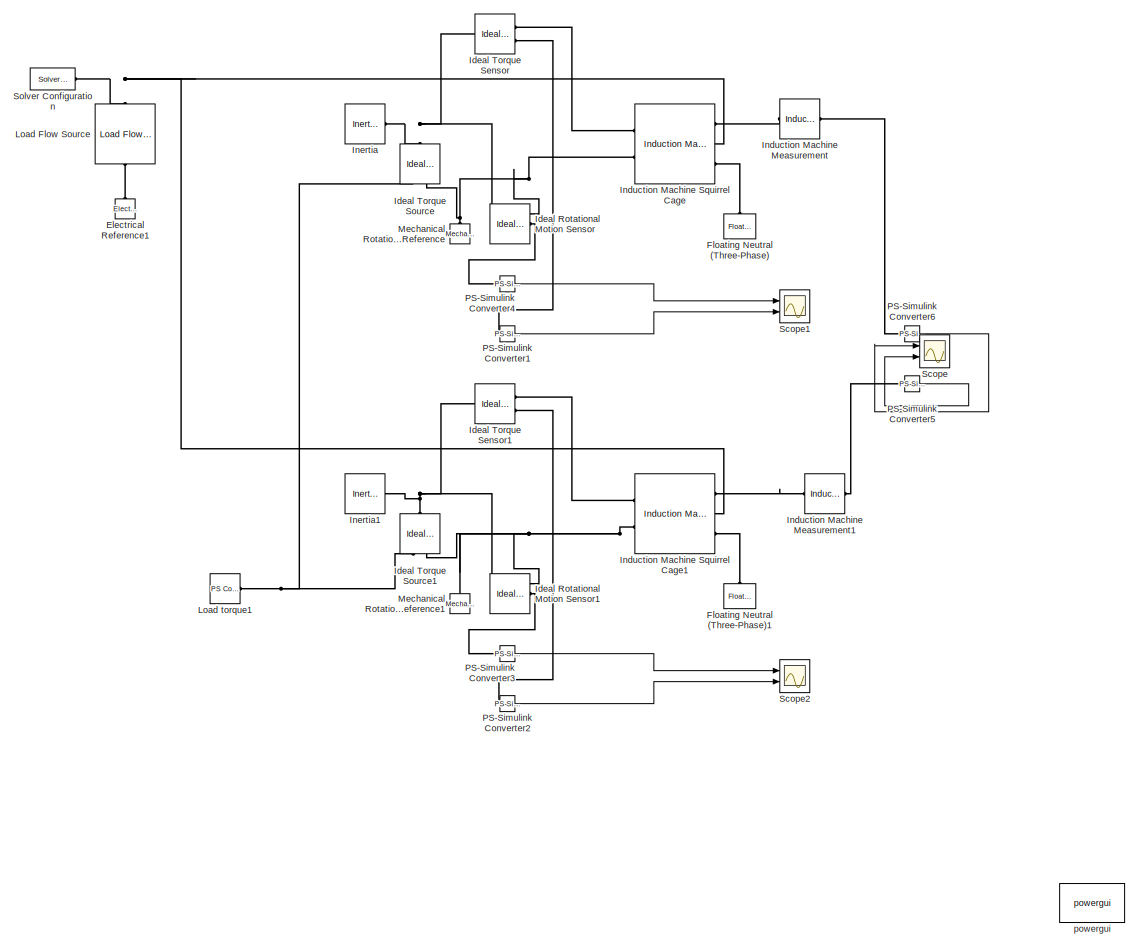
[diagram: root canvas - part 1/6, top left region]
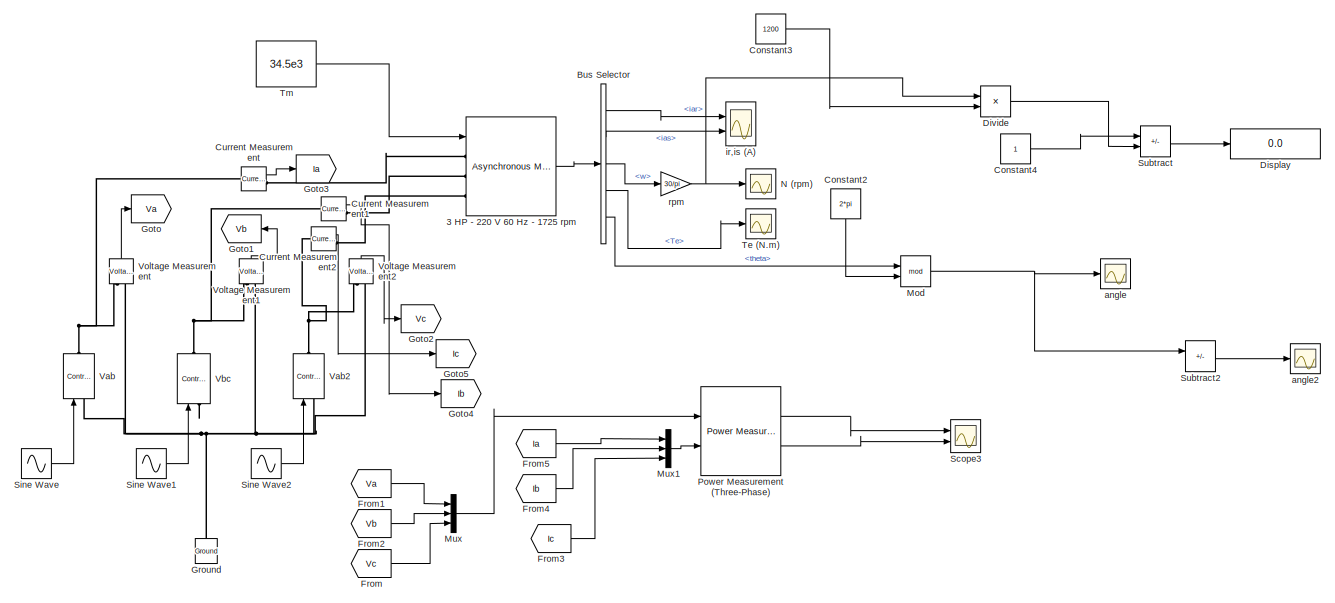
[diagram: root canvas - part 2/6, top center region]
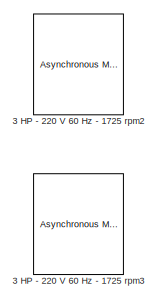
[diagram: root canvas - part 3/6, top right region]
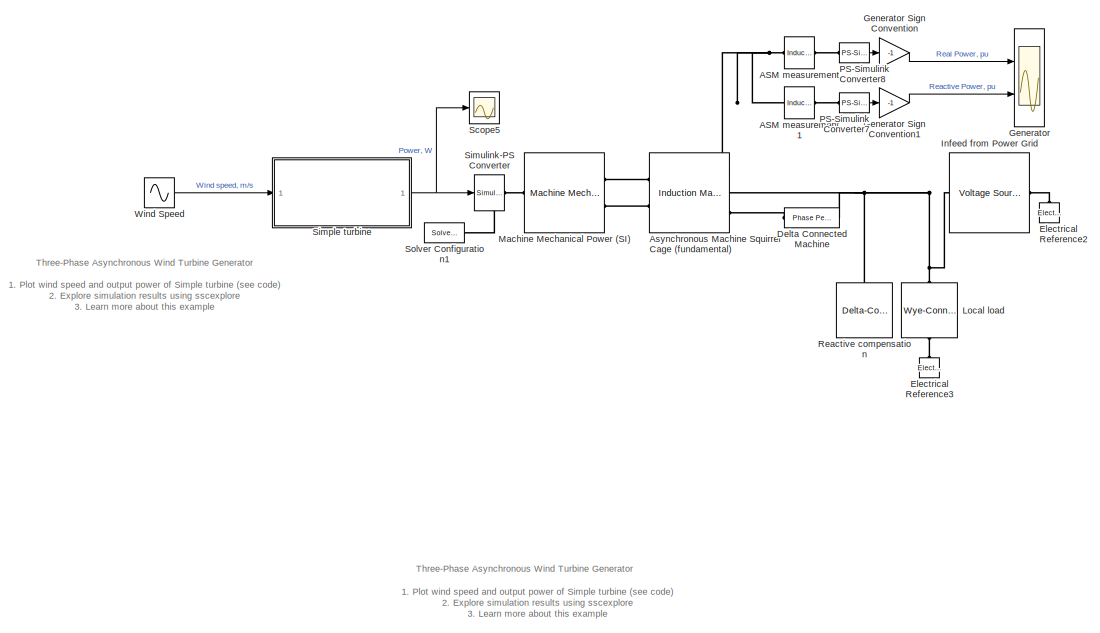
[diagram: root canvas - part 4/6, bottom right region]
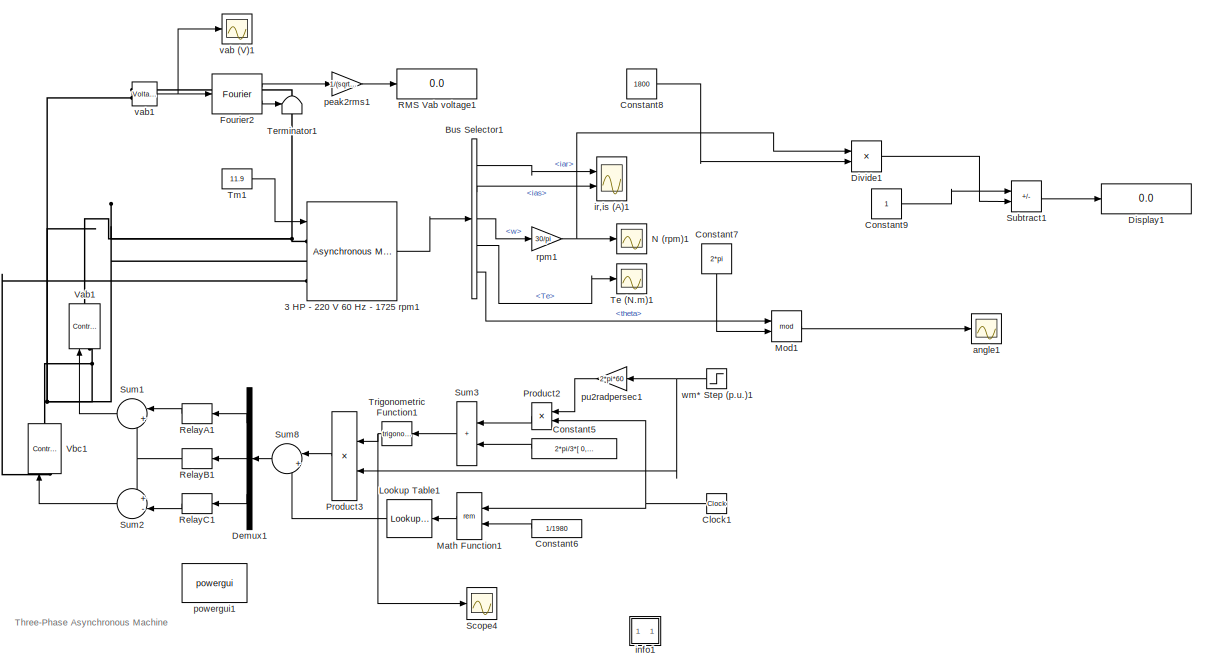
[diagram: root canvas - part 5/6, bottom left region]
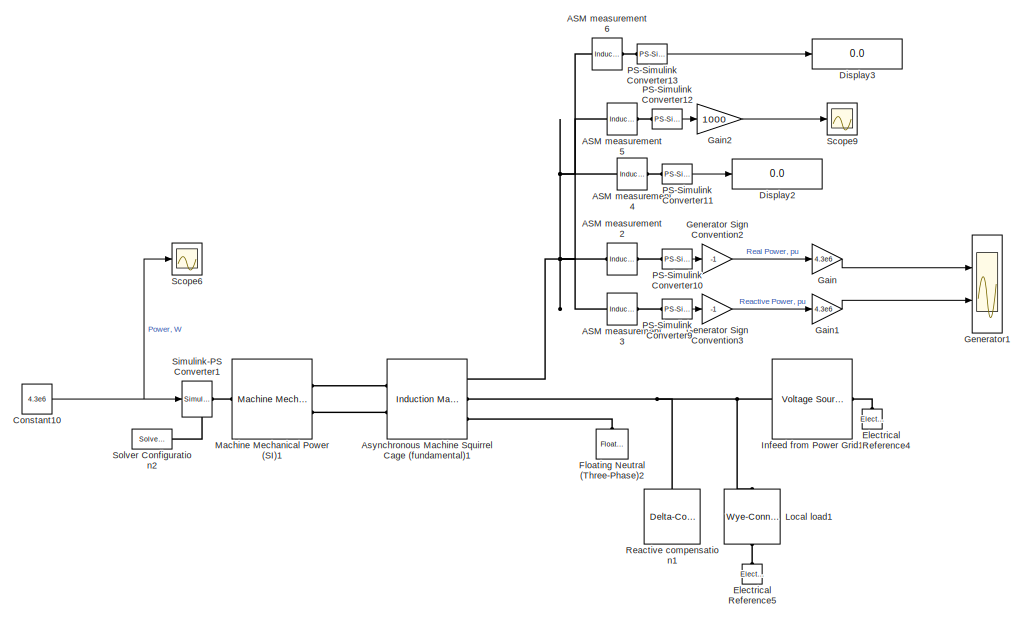
[diagram: root canvas - part 6/6, bottom center region]
MODEL slx_86ca08643fb0
KIND model
CONFIG AbsTol = auto
CONFIG EnableMultiTasking = off
CONFIG FixedStep = auto
CONFIG MaxStep = auto
CONFIG MinStep = auto
CONFIG RelTol = 1e-3
CONFIG SampleTimeConstraint = Unconstrained
CONFIG SolverName = VariableStepAuto
CONFIG StartTime = 0.0
CONFIG StopTime = 60
BLOCK [Reference] 3 HP - 220 V 60 Hz - 1725 rpm  REF=spsAsynchronousMachineSIUnitsLib/Asynchronous Machine
SI Units
  AttributesFormatString = \n
  Ports = [1, 1, 0, 0, 0, 3]
  SourceBlock = spsAsynchronousMachineSIUnitsLib/Asynchronous Machine\nSI Units
  SourceProductBaseCode = PS
  SourceType = Asynchronous Machine
BLOCK [Reference] 3 HP - 220 V 60 Hz - 1725 rpm1  REF=spsAsynchronousMachineSIUnitsLib/Asynchronous Machine
SI Units
  AttributesFormatString = \n
  Commented = on
  Ports = [1, 1, 0, 0, 0, 3]
  SourceBlock = spsAsynchronousMachineSIUnitsLib/Asynchronous Machine\nSI Units
  SourceProductBaseCode = PS
  SourceType = Asynchronous Machine
BLOCK [Reference] 3 HP - 220 V 60 Hz - 1725 rpm2  REF=spsAsynchronousMachineSIUnitsLib/Asynchronous Machine
SI Units
  AttributesFormatString = \n
  Commented = on
  Ports = [0, 1, 0, 0, 0, 4]
  SourceBlock = spsAsynchronousMachineSIUnitsLib/Asynchronous Machine\nSI Units
  SourceProductBaseCode = PS
  SourceType = Asynchronous Machine
BLOCK [Reference] 3 HP - 220 V 60 Hz - 1725 rpm3  REF=spsAsynchronousMachineSIUnitsLib/Asynchronous Machine
SI Units
  AttributesFormatString = \n
  Commented = on
  Ports = [0, 1, 0, 0, 0, 4]
  SourceBlock = spsAsynchronousMachineSIUnitsLib/Asynchronous Machine\nSI Units
  SourceProductBaseCode = PS
  SourceType = Asynchronous Machine
BLOCK [Reference] ASM measurement  REF=ee_lib/Electromechanical/Asynchronous/Induction Machine
Measurement
  Commented = on
  Ports = [0, 0, 0, 0, 0, 1, 1]
  SourceBlock = ee_lib/Electromechanical/Asynchronous/Induction Machine\nMeasurement
  SourceProductBaseCode = PS
  SourceType = Induction Machine\nMeasurement
BLOCK [Reference] ASM measurement1  REF=ee_lib/Electromechanical/Asynchronous/Induction Machine
Measurement
  Commented = on
  Ports = [0, 0, 0, 0, 0, 1, 1]
  SourceBlock = ee_lib/Electromechanical/Asynchronous/Induction Machine\nMeasurement
  SourceProductBaseCode = PS
  SourceType = Induction Machine\nMeasurement
BLOCK [Reference] ASM measurement2  REF=ee_lib/Electromechanical/Asynchronous/Induction Machine
Measurement
  Ports = [0, 0, 0, 0, 0, 1, 1]
  SourceBlock = ee_lib/Electromechanical/Asynchronous/Induction Machine\nMeasurement
  SourceProductBaseCode = PS
  SourceType = Induction Machine\nMeasurement
BLOCK [Reference] ASM measurement3  REF=ee_lib/Electromechanical/Asynchronous/Induction Machine
Measurement
  Ports = [0, 0, 0, 0, 0, 1, 1]
  SourceBlock = ee_lib/Electromechanical/Asynchronous/Induction Machine\nMeasurement
  SourceProductBaseCode = PS
  SourceType = Induction Machine\nMeasurement
BLOCK [Reference] ASM measurement4  REF=ee_lib/Electromechanical/Asynchronous/Induction Machine
Measurement
  Ports = [0, 0, 0, 0, 0, 1, 1]
  SourceBlock = ee_lib/Electromechanical/Asynchronous/Induction Machine\nMeasurement
  SourceProductBaseCode = PS
  SourceType = Induction Machine\nMeasurement
BLOCK [Reference] ASM measurement5  REF=ee_lib/Electromechanical/Asynchronous/Induction Machine
Measurement
  Ports = [0, 0, 0, 0, 0, 1, 1]
  SourceBlock = ee_lib/Electromechanical/Asynchronous/Induction Machine\nMeasurement
  SourceProductBaseCode = PS
  SourceType = Induction Machine\nMeasurement
BLOCK [Reference] ASM measurement6  REF=ee_lib/Electromechanical/Asynchronous/Induction Machine
Measurement
  Ports = [0, 0, 0, 0, 0, 1, 1]
  SourceBlock = ee_lib/Electromechanical/Asynchronous/Induction Machine\nMeasurement
  SourceProductBaseCode = PS
  SourceType = Induction Machine\nMeasurement
BLOCK [Reference] Asynchronous Machine Squirrel Cage (fundamental)  REF=ee_lib/Electromechanical/Asynchronous/Induction Machine
Squirrel Cage
  Commented = on
  Ports = [0, 0, 0, 0, 0, 2, 3]
  SourceBlock = ee_lib/Electromechanical/Asynchronous/Induction Machine\nSquirrel Cage
  SourceProductBaseCode = PS
  SourceType = Induction Machine\nSquirrel Cage
BLOCK [Reference] Asynchronous Machine Squirrel Cage (fundamental)1  REF=ee_lib/Electromechanical/Asynchronous/Induction Machine
Squirrel Cage
  Ports = [0, 0, 0, 0, 0, 2, 3]
  SourceBlock = ee_lib/Electromechanical/Asynchronous/Induction Machine\nSquirrel Cage
  SourceProductBaseCode = PS
  SourceType = Induction Machine\nSquirrel Cage
BLOCK [BusSelector] Bus Selector
  OutputSignals = iar,ias,w,Te,theta
  Ports = [1, 5]
BLOCK [BusSelector] Bus Selector1
  Commented = on
  OutputSignals = iar,ias,w,Te,theta
  Ports = [1, 5]
BLOCK [Clock] Clock1
  Commented = on
BLOCK [Constant] Constant10
  Value = 4.3e6
BLOCK [Constant] Constant2
  NameLocation = left
  Value = 2*pi
BLOCK [Constant] Constant3
  Value = 1200
BLOCK [Constant] Constant4
BLOCK [Constant] Constant5
  Commented = on
  Value = 2*pi/3*[ 0,-1,1 ]
BLOCK [Constant] Constant6
  Commented = on
  Value = 1/1980
BLOCK [Constant] Constant7
  Commented = on
  NameLocation = left
  Value = 2*pi
BLOCK [Constant] Constant8
  Commented = on
  Value = 1800
BLOCK [Constant] Constant9
  Commented = on
BLOCK [Reference] Current Measurement  REF=spsCurrentMeasurementLib/Current Measurement
  Ports = [0, 1, 0, 0, 0, 1, 1]
  SourceBlock = spsCurrentMeasurementLib/Current Measurement
  SourceProductBaseCode = PS
  SourceType = Current Measurement
  UserDataPersistent = on
BLOCK [Reference] Current Measurement1  REF=spsCurrentMeasurementLib/Current Measurement
  Ports = [0, 1, 0, 0, 0, 1, 1]
  SourceBlock = spsCurrentMeasurementLib/Current Measurement
  SourceProductBaseCode = PS
  SourceType = Current Measurement
  UserDataPersistent = on
BLOCK [Reference] Current Measurement2  REF=spsCurrentMeasurementLib/Current Measurement
  Ports = [0, 1, 0, 0, 0, 1, 1]
  SourceBlock = spsCurrentMeasurementLib/Current Measurement
  SourceProductBaseCode = PS
  SourceType = Current Measurement
  UserDataPersistent = on
BLOCK [Reference] Delta Connected Machine  REF=ee_lib/Connectors &
References/Phase Permute
  Commented = on
  Ports = [0, 0, 0, 0, 0, 1, 1]
  SourceBlock = ee_lib/Connectors &\nReferences/Phase Permute
  SourceProductBaseCode = PS
  SourceType = Phase Permute
BLOCK [Demux] Demux1
  Commented = on
  DisplayOption = none
  Outputs = 3
  Ports = [1, 3]
BLOCK [Display] Display
  Decimation = 1
  Ports = [1]
BLOCK [Display] Display1
  Commented = on
  Decimation = 1
  Ports = [1]
BLOCK [Display] Display2
  Decimation = 1
  Ports = [1]
BLOCK [Display] Display3
  Decimation = 1
  Ports = [1]
BLOCK [Product] Divide
  Inputs = */
  Ports = [2, 1]
BLOCK [Product] Divide1
  Commented = on
  Inputs = */
  Ports = [2, 1]
BLOCK [Reference] Electrical Reference1  REF=fl_lib/Electrical/Electrical Elements/Electrical Reference
  Commented = on
  NameLocation = right
  Ports = [0, 0, 0, 0, 0, 1]
  SourceBlock = fl_lib/Electrical/Electrical Elements/Electrical Reference
  SourceProductBaseCode = SS
  SourceType = Electrical Reference
BLOCK [Reference] Electrical Reference2  REF=fl_lib/Electrical/Electrical Elements/Electrical Reference
  Commented = on
  NameLocation = right
  Ports = [0, 0, 0, 0, 0, 1]
  SourceBlock = fl_lib/Electrical/Electrical Elements/Electrical Reference
  SourceProductBaseCode = SS
  SourceType = Electrical Reference
BLOCK [Reference] Electrical Reference3  REF=fl_lib/Electrical/Electrical Elements/Electrical Reference
  Commented = on
  NameLocation = right
  Ports = [0, 0, 0, 0, 0, 1]
  SourceBlock = fl_lib/Electrical/Electrical Elements/Electrical Reference
  SourceProductBaseCode = SS
  SourceType = Electrical Reference
BLOCK [Reference] Electrical Reference4  REF=fl_lib/Electrical/Electrical Elements/Electrical Reference
  NameLocation = right
  Ports = [0, 0, 0, 0, 0, 1]
  SourceBlock = fl_lib/Electrical/Electrical Elements/Electrical Reference
  SourceProductBaseCode = SS
  SourceType = Electrical Reference
BLOCK [Reference] Electrical Reference5  REF=fl_lib/Electrical/Electrical Elements/Electrical Reference
  Commented = on
  NameLocation = right
  Ports = [0, 0, 0, 0, 0, 1]
  SourceBlock = fl_lib/Electrical/Electrical Elements/Electrical Reference
  SourceProductBaseCode = SS
  SourceType = Electrical Reference
BLOCK [Reference] Floating Neutral (Three-Phase)  REF=ee_lib/Connectors &
References/Floating Neutral
(Three-Phase)
  Commented = on
  NameLocation = right
  Ports = [0, 0, 0, 0, 0, 1]
  SourceBlock = ee_lib/Connectors &\nReferences/Floating Neutral\n(Three-Phase)
  SourceProductBaseCode = PS
  SourceType = Floating Neutral\n(Three-Phase)
BLOCK [Reference] Floating Neutral (Three-Phase)1  REF=ee_lib/Connectors &
References/Floating Neutral
(Three-Phase)
  Commented = on
  NameLocation = right
  Ports = [0, 0, 0, 0, 0, 1]
  SourceBlock = ee_lib/Connectors &\nReferences/Floating Neutral\n(Three-Phase)
  SourceProductBaseCode = PS
  SourceType = Floating Neutral\n(Three-Phase)
BLOCK [Reference] Floating Neutral (Three-Phase)2  REF=ee_lib/Connectors &
References/Floating Neutral
(Three-Phase)
  NameLocation = right
  Ports = [0, 0, 0, 0, 0, 1]
  SourceBlock = ee_lib/Connectors &\nReferences/Floating Neutral\n(Three-Phase)
  SourceProductBaseCode = PS
  SourceType = Floating Neutral\n(Three-Phase)
BLOCK [Reference] Fourier2  REF=spsFourierLib/Fourier
  Commented = on
  Ports = [1, 2]
  SourceBlock = spsFourierLib/Fourier
  SourceProductBaseCode = PS
  SourceType = Fourier
BLOCK [From] From
  GotoTag = Vc
BLOCK [From] From1
  GotoTag = Va
BLOCK [From] From2
  GotoTag = Vb
BLOCK [From] From3
  GotoTag = Ic
BLOCK [From] From4
  GotoTag = Ib
BLOCK [From] From5
  GotoTag = Ia
BLOCK [Gain] Gain
  Gain = 4.3e6
BLOCK [Gain] Gain1
  Gain = 4.3e6
BLOCK [Gain] Gain2
  Gain = 1000
BLOCK [Scope] Generator
  Commented = on
  Floating = off
  NumInputPorts = 2
  Ports = [2]
  ScopeSpecificationString = Simulink.scopes.TimeScopeBlockCfg('CurrentConfiguration', extmgr.ConfigurationSet(extmgr.Configuration('Core','General UI',true),extmgr.Configuration('Core','Source UI',true),extmgr.Configuration('Sources','WiredSimulink',true,'DataLoggingVariableName','ScopeData16','DataLoggingSaveFormat','Array','DataLoggingDecimation','1','DataLoggingDecimateData',true),extmgr.Configuration('Visuals','Time Doma...<+2374ch>
BLOCK [Gain] Generator Sign Convention
  Commented = on
  Gain = -1
BLOCK [Gain] Generator Sign Convention1
  Commented = on
  Gain = -1
BLOCK [Gain] Generator Sign Convention2
  Gain = -1
BLOCK [Gain] Generator Sign Convention3
  Gain = -1
BLOCK [Scope] Generator1
  Floating = off
  NumInputPorts = 2
  Ports = [2]
  ScopeSpecificationString = Simulink.scopes.TimeScopeBlockCfg('CurrentConfiguration', extmgr.ConfigurationSet(extmgr.Configuration('Core','General UI',true),extmgr.Configuration('Core','Source UI',true),extmgr.Configuration('Sources','WiredSimulink',true,'DataLoggingVariableName','ScopeData18','DataLoggingSaveFormat','Array','DataLoggingDecimation','1','DataLoggingDecimateData',true),extmgr.Configuration('Visuals','Time Doma...<+2390ch>
BLOCK [Goto] Goto
  GotoTag = Va
BLOCK [Goto] Goto1
  GotoTag = Vb
  NameLocation = top
BLOCK [Goto] Goto2
  GotoTag = Vc
BLOCK [Goto] Goto3
  GotoTag = Ia
BLOCK [Goto] Goto4
  GotoTag = Ib
BLOCK [Goto] Goto5
  GotoTag = Ic
BLOCK [Reference] Ground  REF=spsGroundLib/Ground
  NameLocation = right
  Ports = [0, 0, 0, 0, 0, 1]
  SourceBlock = spsGroundLib/Ground
  SourceProductBaseCode = PS
  SourceType = Ground
BLOCK [Reference] Ideal Rotational Motion Sensor  REF=fl_lib/Mechanical/Mechanical Sensors/Ideal Rotational
Motion Sensor
  Commented = on
  Ports = [0, 0, 0, 0, 0, 1, 3]
  SourceBlock = fl_lib/Mechanical/Mechanical Sensors/Ideal Rotational\nMotion Sensor
  SourceProductBaseCode = SS
  SourceType = Ideal Rotational\nMotion Sensor
BLOCK [Reference] Ideal Rotational Motion Sensor1  REF=fl_lib/Mechanical/Mechanical Sensors/Ideal Rotational
Motion Sensor
  Commented = on
  Ports = [0, 0, 0, 0, 0, 1, 3]
  SourceBlock = fl_lib/Mechanical/Mechanical Sensors/Ideal Rotational\nMotion Sensor
  SourceProductBaseCode = SS
  SourceType = Ideal Rotational\nMotion Sensor
BLOCK [Reference] Ideal Torque Sensor  REF=fl_lib/Mechanical/Mechanical Sensors/Ideal Torque Sensor
  Commented = on
  Ports = [0, 0, 0, 0, 0, 1, 2]
  SourceBlock = fl_lib/Mechanical/Mechanical Sensors/Ideal Torque Sensor
  SourceProductBaseCode = SS
  SourceType = Ideal Torque Sensor
BLOCK [Reference] Ideal Torque Sensor1  REF=fl_lib/Mechanical/Mechanical Sensors/Ideal Torque Sensor
  Commented = on
  Ports = [0, 0, 0, 0, 0, 1, 2]
  SourceBlock = fl_lib/Mechanical/Mechanical Sensors/Ideal Torque Sensor
  SourceProductBaseCode = SS
  SourceType = Ideal Torque Sensor
BLOCK [Reference] Ideal Torque Source  REF=fl_lib/Mechanical/Mechanical Sources/Ideal Torque Source
  Commented = on
  NameLocation = right
  Ports = [0, 0, 0, 0, 0, 1, 2]
  SourceBlock = fl_lib/Mechanical/Mechanical Sources/Ideal Torque Source
  SourceProductBaseCode = SS
  SourceType = Ideal Torque Source
BLOCK [Reference] Ideal Torque Source1  REF=fl_lib/Mechanical/Mechanical Sources/Ideal Torque Source
  Commented = on
  NameLocation = right
  Ports = [0, 0, 0, 0, 0, 1, 2]
  SourceBlock = fl_lib/Mechanical/Mechanical Sources/Ideal Torque Source
  SourceProductBaseCode = SS
  SourceType = Ideal Torque Source
BLOCK [Reference] Induction Machine Measurement  REF=ee_lib/Electromechanical/Asynchronous/Induction Machine
Measurement
  Commented = on
  Ports = [0, 0, 0, 0, 0, 1, 1]
  SourceBlock = ee_lib/Electromechanical/Asynchronous/Induction Machine\nMeasurement
  SourceProductBaseCode = PS
  SourceType = Induction Machine\nMeasurement
BLOCK [Reference] Induction Machine Measurement1  REF=ee_lib/Electromechanical/Asynchronous/Induction Machine
Measurement
  Commented = on
  Ports = [0, 0, 0, 0, 0, 1, 1]
  SourceBlock = ee_lib/Electromechanical/Asynchronous/Induction Machine\nMeasurement
  SourceProductBaseCode = PS
  SourceType = Induction Machine\nMeasurement
BLOCK [Reference] Induction Machine Squirrel Cage  REF=ee_lib/Electromechanical/Asynchronous/Induction Machine
Squirrel Cage
  Commented = on
  Ports = [0, 0, 0, 0, 0, 2, 3]
  SourceBlock = ee_lib/Electromechanical/Asynchronous/Induction Machine\nSquirrel Cage
  SourceProductBaseCode = PS
  SourceType = Induction Machine\nSquirrel Cage
BLOCK [Reference] Induction Machine Squirrel Cage1  REF=ee_lib/Electromechanical/Asynchronous/Induction Machine
Squirrel Cage
  Commented = on
  Ports = [0, 0, 0, 0, 0, 2, 3]
  SourceBlock = ee_lib/Electromechanical/Asynchronous/Induction Machine\nSquirrel Cage
  SourceProductBaseCode = PS
  SourceType = Induction Machine\nSquirrel Cage
BLOCK [Reference] Inertia  REF=fl_lib/Mechanical/Rotational Elements/Inertia
  Commented = on
  Ports = [0, 0, 0, 0, 0, 1]
  SourceBlock = fl_lib/Mechanical/Rotational Elements/Inertia
  SourceProductBaseCode = SS
  SourceType = Inertia
BLOCK [Reference] Inertia1  REF=fl_lib/Mechanical/Rotational Elements/Inertia
  Commented = on
  Ports = [0, 0, 0, 0, 0, 1]
  SourceBlock = fl_lib/Mechanical/Rotational Elements/Inertia
  SourceProductBaseCode = SS
  SourceType = Inertia
BLOCK [Reference] Infeed from Power Grid  REF=ee_lib/Sources/Voltage
Source
(Three-Phase)
  Commented = on
  Ports = [0, 0, 0, 0, 0, 1, 1]
  SourceBlock = ee_lib/Sources/Voltage\nSource\n(Three-Phase)
  SourceProductBaseCode = PS
  SourceType = Voltage\nSource\n(Three-Phase)
BLOCK [Reference] Infeed from Power Grid1  REF=ee_lib/Sources/Voltage
Source
(Three-Phase)
  Ports = [0, 0, 0, 0, 0, 1, 1]
  SourceBlock = ee_lib/Sources/Voltage\nSource\n(Three-Phase)
  SourceProductBaseCode = PS
  SourceType = Voltage\nSource\n(Three-Phase)
BLOCK [Reference] Load Flow Source  REF=ee_lib/Sources/Load Flow Source
  Commented = on
  NameLocation = left
  Ports = [0, 0, 0, 0, 0, 1, 1]
  SourceBlock = ee_lib/Sources/Load Flow Source
  SourceProductBaseCode = PS
  SourceType = Load Flow Source
BLOCK [Reference] Load torque1  REF=fl_lib/Physical Signals/Sources/PS Constant
  Commented = on
  Ports = [0, 0, 0, 0, 0, 0, 1]
  SourceBlock = fl_lib/Physical Signals/Sources/PS Constant
  SourceProductBaseCode = SS
  SourceType = PS Constant
BLOCK [Reference] Local load  REF=ee_lib/Passive/RLC Assemblies/Wye-Connected Load
  Commented = on
  NameLocation = right
  Ports = [0, 0, 0, 0, 0, 1, 1]
  SourceBlock = ee_lib/Passive/RLC Assemblies/Wye-Connected Load
  SourceProductBaseCode = PS
  SourceType = Wye-Connected Load
BLOCK [Reference] Local load1  REF=ee_lib/Passive/RLC Assemblies/Wye-Connected Load
  Commented = on
  NameLocation = right
  Ports = [0, 0, 0, 0, 0, 1, 1]
  SourceBlock = ee_lib/Passive/RLC Assemblies/Wye-Connected Load
  SourceProductBaseCode = PS
  SourceType = Wye-Connected Load
BLOCK [Lookup_n-D] Lookup Table1
  BreakpointsForDimension1 = [0 0.25  0.75  1] / 1980
  BreakpointsForDimension2 = [0 571.55 685.8 800.15 914.4 1028.8 1143.1 1257.4 1371.7 1486 1600.3 1714.6 1828.9 1943.2 2057.5 2171.8 2286.1 2400.5 2514.7 2629.1 2743.3 2857.7 2971.9 3086.3 3200.5 3314.9 3429.2]
  Commented = on
  InputPortMap = u0
  InternalRulePriority = Speed
  NumberOfTableDimensions = 1
  Ports = [1, 1]
  RndMeth = Simplest
  Table = [0  1  -1  0]
BLOCK [Reference] Machine Mechanical Power (SI)  REF=ee_lib/Electromechanical/Mechanical/Machine Mechanical
Power
  Commented = on
  Ports = [0, 0, 0, 0, 0, 1, 2]
  SourceBlock = ee_lib/Electromechanical/Mechanical/Machine Mechanical\nPower
  SourceProductBaseCode = PS
  SourceType = Machine Mechanical\nPower
BLOCK [Reference] Machine Mechanical Power (SI)1  REF=ee_lib/Electromechanical/Mechanical/Machine Mechanical
Power
  Ports = [0, 0, 0, 0, 0, 1, 2]
  SourceBlock = ee_lib/Electromechanical/Mechanical/Machine Mechanical\nPower
  SourceProductBaseCode = PS
  SourceType = Machine Mechanical\nPower
BLOCK [Math] Math Function1
  Commented = on
  Operator = rem
  Ports = [2, 1]
  SignedPower = on
BLOCK [Reference] Mechanical Rotational Reference  REF=fl_lib/Mechanical/Rotational Elements/Mechanical
Rotational Reference
  Commented = on
  NameLocation = right
  Ports = [0, 0, 0, 0, 0, 1]
  SourceBlock = fl_lib/Mechanical/Rotational Elements/Mechanical\nRotational Reference
  SourceProductBaseCode = SS
  SourceType = Mechanical\nRotational Reference
BLOCK [Reference] Mechanical Rotational Reference1  REF=fl_lib/Mechanical/Rotational Elements/Mechanical
Rotational Reference
  Commented = on
  NameLocation = right
  Ports = [0, 0, 0, 0, 0, 1]
  SourceBlock = fl_lib/Mechanical/Rotational Elements/Mechanical\nRotational Reference
  SourceProductBaseCode = SS
  SourceType = Mechanical\nRotational Reference
BLOCK [Math] Mod
  Operator = mod
  Ports = [2, 1]
BLOCK [Math] Mod1
  Commented = on
  Operator = mod
  Ports = [2, 1]
BLOCK [Mux] Mux
  DisplayOption = bar
  Inputs = 3
  Ports = [3, 1]
BLOCK [Mux] Mux1
  DisplayOption = bar
  Inputs = 3
  Ports = [3, 1]
BLOCK [Scope] N (rpm)
  Floating = off
  NameLocation = top
  NumInputPorts = 1
  Ports = [1]
  ScopeSpecificationString = Simulink.scopes.TimeScopeBlockCfg('CurrentConfiguration', extmgr.ConfigurationSet(extmgr.Configuration('Core','General UI',true),extmgr.Configuration('Core','Source UI',true),extmgr.Configuration('Sources','WiredSimulink',true,'DataLoggingSaveFormat','Array','DataLoggingDecimation','1','DataLoggingDecimateData',true,'DataLoggingVariableName','ScopeData3'),extmgr.Configuration('Visuals','Time Domai...<+1670ch>
BLOCK [Scope] N (rpm)1
  Commented = on
  Floating = off
  NameLocation = top
  NumInputPorts = 1
  Ports = [1]
  ScopeSpecificationString = Simulink.scopes.TimeScopeBlockCfg('CurrentConfiguration', extmgr.ConfigurationSet(extmgr.Configuration('Core','General UI',true),extmgr.Configuration('Core','Source UI',true),extmgr.Configuration('Sources','WiredSimulink',true,'DataLoggingSaveFormat','Array','DataLoggingDecimation','1','DataLoggingDecimateData',true,'DataLoggingVariableName','ScopeData9'),extmgr.Configuration('Visuals','Time Domai...<+1666ch>
BLOCK [Reference] PS-Simulink Converter1  REF=nesl_utility/PS-Simulink
Converter
  Commented = on
  Ports = [0, 1, 0, 0, 0, 1]
  SourceBlock = nesl_utility/PS-Simulink\nConverter
  SourceProductBaseCode = PW,SS
  SourceType = PS-Simulink\nConverter
BLOCK [Reference] PS-Simulink Converter10  REF=nesl_utility/PS-Simulink
Converter
  Ports = [0, 1, 0, 0, 0, 1]
  SourceBlock = nesl_utility/PS-Simulink\nConverter
  SourceProductBaseCode = PW,SS
  SourceType = PS-Simulink\nConverter
BLOCK [Reference] PS-Simulink Converter11  REF=nesl_utility/PS-Simulink
Converter
  Ports = [0, 1, 0, 0, 0, 1]
  SourceBlock = nesl_utility/PS-Simulink\nConverter
  SourceProductBaseCode = PW,SS
  SourceType = PS-Simulink\nConverter
BLOCK [Reference] PS-Simulink Converter12  REF=nesl_utility/PS-Simulink
Converter
  Ports = [0, 1, 0, 0, 0, 1]
  SourceBlock = nesl_utility/PS-Simulink\nConverter
  SourceProductBaseCode = PW,SS
  SourceType = PS-Simulink\nConverter
BLOCK [Reference] PS-Simulink Converter13  REF=nesl_utility/PS-Simulink
Converter
  Ports = [0, 1, 0, 0, 0, 1]
  SourceBlock = nesl_utility/PS-Simulink\nConverter
  SourceProductBaseCode = PW,SS
  SourceType = PS-Simulink\nConverter
BLOCK [Reference] PS-Simulink Converter2  REF=nesl_utility/PS-Simulink
Converter
  Commented = on
  Ports = [0, 1, 0, 0, 0, 1]
  SourceBlock = nesl_utility/PS-Simulink\nConverter
  SourceProductBaseCode = PW,SS
  SourceType = PS-Simulink\nConverter
BLOCK [Reference] PS-Simulink Converter3  REF=nesl_utility/PS-Simulink
Converter
  Commented = on
  Ports = [0, 1, 0, 0, 0, 1]
  SourceBlock = nesl_utility/PS-Simulink\nConverter
  SourceProductBaseCode = PW,SS
  SourceType = PS-Simulink\nConverter
BLOCK [Reference] PS-Simulink Converter4  REF=nesl_utility/PS-Simulink
Converter
  Commented = on
  Ports = [0, 1, 0, 0, 0, 1]
  SourceBlock = nesl_utility/PS-Simulink\nConverter
  SourceProductBaseCode = PW,SS
  SourceType = PS-Simulink\nConverter
BLOCK [Reference] PS-Simulink Converter5  REF=nesl_utility/PS-Simulink
Converter
  Commented = on
  Ports = [0, 1, 0, 0, 0, 1]
  SourceBlock = nesl_utility/PS-Simulink\nConverter
  SourceProductBaseCode = PW,SS
  SourceType = PS-Simulink\nConverter
BLOCK [Reference] PS-Simulink Converter6  REF=nesl_utility/PS-Simulink
Converter
  Commented = on
  Ports = [0, 1, 0, 0, 0, 1]
  SourceBlock = nesl_utility/PS-Simulink\nConverter
  SourceProductBaseCode = PW,SS
  SourceType = PS-Simulink\nConverter
BLOCK [Reference] PS-Simulink Converter7  REF=nesl_utility/PS-Simulink
Converter
  Commented = on
  Ports = [0, 1, 0, 0, 0, 1]
  SourceBlock = nesl_utility/PS-Simulink\nConverter
  SourceProductBaseCode = PW,SS
  SourceType = PS-Simulink\nConverter
BLOCK [Reference] PS-Simulink Converter8  REF=nesl_utility/PS-Simulink
Converter
  Commented = on
  Ports = [0, 1, 0, 0, 0, 1]
  SourceBlock = nesl_utility/PS-Simulink\nConverter
  SourceProductBaseCode = PW,SS
  SourceType = PS-Simulink\nConverter
BLOCK [Reference] PS-Simulink Converter9  REF=nesl_utility/PS-Simulink
Converter
  Ports = [0, 1, 0, 0, 0, 1]
  SourceBlock = nesl_utility/PS-Simulink\nConverter
  SourceProductBaseCode = PW,SS
  SourceType = PS-Simulink\nConverter
BLOCK [Reference] Power Measurement (Three-Phase)  REF=eePowerMeasurement/Power Measurement
(Three-Phase)
  Ports = [2, 2]
  SourceBlock = eePowerMeasurement/Power Measurement\n(Three-Phase)
  SourceProductBaseCode = PS
  SourceType = Power Measurement (Three-Phase)
BLOCK [Product] Product2
  Commented = on
  InputSameDT = on
  NameLocation = top
  OutDataTypeStr = Inherit: Same as first input
  Ports = [2, 1]
  SaturateOnIntegerOverflow = on
BLOCK [Product] Product3
  Commented = on
  InputSameDT = on
  NameLocation = top
  OutDataTypeStr = Inherit: Same as first input
  Ports = [2, 1]
  SaturateOnIntegerOverflow = on
BLOCK [Display] RMS Vab voltage1
  Commented = on
  Decimation = 100
  Ports = [1]
BLOCK [Reference] Reactive compensation  REF=ee_lib/Passive/RLC Assemblies/Delta-Connected Load
  Commented = on
  NameLocation = left
  Ports = [0, 0, 0, 0, 0, 1]
  SourceBlock = ee_lib/Passive/RLC Assemblies/Delta-Connected Load
  SourceProductBaseCode = PS
  SourceType = Delta-Connected Load
BLOCK [Reference] Reactive compensation1  REF=ee_lib/Passive/RLC Assemblies/Delta-Connected Load
  Commented = on
  NameLocation = left
  Ports = [0, 0, 0, 0, 0, 1]
  SourceBlock = ee_lib/Passive/RLC Assemblies/Delta-Connected Load
  SourceProductBaseCode = PS
  SourceType = Delta-Connected Load
BLOCK [Relay] RelayA1
  Commented = on
  NameLocation = top
  OffOutputValue = -220*sqrt(2/3)
  OffSwitchValue = 0
  OnOutputValue = 220*sqrt(2/3)
  OnSwitchValue = 0
BLOCK [Relay] RelayB1
  Commented = on
  NameLocation = top
  OffOutputValue = -220*sqrt(2/3)
  OffSwitchValue = 0
  OnOutputValue = 220*sqrt(2/3)
  OnSwitchValue = 0
BLOCK [Relay] RelayC1
  Commented = on
  NameLocation = top
  OffOutputValue = -220*sqrt(2/3)
  OffSwitchValue = 0
  OnOutputValue = 220*sqrt(2/3)
  OnSwitchValue = 0
BLOCK [Scope] Scope
  Commented = on
  Floating = off
  NumInputPorts = 2
  Ports = [2]
  ScopeSpecificationString = Simulink.scopes.TimeScopeBlockCfg('CurrentConfiguration', extmgr.ConfigurationSet(extmgr.Configuration('Core','General UI',true),extmgr.Configuration('Core','Source UI',true),extmgr.Configuration('Sources','WiredSimulink',true,'DataLoggingVariableName','ScopeData2'),extmgr.Configuration('Visuals','Time Domain',true,'SerializedDisplays',{struct('MinYLimReal','0.70649','MaxYLimReal','0.75096','YLabe...<+2177ch>
BLOCK [Scope] Scope1
  Commented = on
  Floating = off
  NumInputPorts = 2
  Ports = [2]
  ScopeSpecificationString = Simulink.scopes.TimeScopeBlockCfg('CurrentConfiguration', extmgr.ConfigurationSet(extmgr.Configuration('Core','General UI',true),extmgr.Configuration('Core','Source UI',true),extmgr.Configuration('Sources','WiredSimulink',true,'DataLoggingVariableName','ScopeData1'),extmgr.Configuration('Visuals','Time Domain',true,'SerializedDisplays',{struct('MinYLimReal','125.42006','MaxYLimReal','125.46987','Y...<+2149ch>
BLOCK [Scope] Scope2
  Commented = on
  Floating = off
  NumInputPorts = 2
  Ports = [2]
  ScopeSpecificationString = Simulink.scopes.TimeScopeBlockCfg('CurrentConfiguration', extmgr.ConfigurationSet(extmgr.Configuration('Core','General UI',true),extmgr.Configuration('Core','Source UI',true),extmgr.Configuration('Sources','WiredSimulink',true),extmgr.Configuration('Visuals','Time Domain',true,'SerializedDisplays',{struct('MinYLimReal','106.76498','MaxYLimReal','197.57673','YLabelReal','','MinYLimMag','106.76498',...<+2080ch>
BLOCK [Scope] Scope3
  Floating = off
  NumInputPorts = 2
  Ports = [2]
  ScopeSpecificationString = Simulink.scopes.TimeScopeBlockCfg('CurrentConfiguration', extmgr.ConfigurationSet(extmgr.Configuration('Core','General UI',true),extmgr.Configuration('Core','Source UI',true),extmgr.Configuration('Sources','WiredSimulink',true,'DataLoggingVariableName','ScopeData6'),extmgr.Configuration('Visuals','Time Domain',true,'SerializedDisplays',{struct('MinYLimReal','-18372765.89566','MaxYLimReal','1454499...<+2156ch>
BLOCK [Scope] Scope4
  Commented = on
  Floating = off
  NumInputPorts = 1
  Ports = [1]
  ScopeSpecificationString = Simulink.scopes.TimeScopeBlockCfg('CurrentConfiguration', extmgr.ConfigurationSet(extmgr.Configuration('Core','General UI',true),extmgr.Configuration('Core','Source UI',true),extmgr.Configuration('Sources','WiredSimulink',true,'DataLoggingVariableName','ScopeData10'),extmgr.Configuration('Visuals','Time Domain',true,'SerializedDisplays',{struct('MinYLimReal','-1.73424','MaxYLimReal','1.8293','YLab...<+1478ch>
BLOCK [Scope] Scope5
  Commented = on
  Floating = off
  NumInputPorts = 1
  Ports = [1]
  ScopeSpecificationString = Simulink.scopes.TimeScopeBlockCfg('CurrentConfiguration', extmgr.ConfigurationSet(extmgr.Configuration('Core','General UI',true),extmgr.Configuration('Core','Source UI',true),extmgr.Configuration('Sources','WiredSimulink',true,'DataLoggingVariableName','ScopeData17'),extmgr.Configuration('Visuals','Time Domain',true,'SerializedDisplays',{struct('MinYLimReal','-18750.00000','MaxYLimReal','168750.00...<+1483ch>
BLOCK [Scope] Scope6
  Floating = off
  NumInputPorts = 1
  Ports = [1]
  ScopeSpecificationString = Simulink.scopes.TimeScopeBlockCfg('CurrentConfiguration', extmgr.ConfigurationSet(extmgr.Configuration('Core','General UI',true),extmgr.Configuration('Core','Source UI',true),extmgr.Configuration('Sources','WiredSimulink',true,'DataLoggingVariableName','ScopeData19'),extmgr.Configuration('Visuals','Time Domain',true,'SerializedDisplays',{struct('MinYLimReal','3997170.02424','MaxYLimReal','4002371....<+1523ch>
BLOCK [Scope] Scope9
  Floating = off
  NumInputPorts = 1
  Ports = [1]
  ScopeSpecificationString = Simulink.scopes.TimeScopeBlockCfg('CurrentConfiguration', extmgr.ConfigurationSet(extmgr.Configuration('Core','General UI',true),extmgr.Configuration('Core','Source UI',true),extmgr.Configuration('Sources','WiredSimulink',true,'DataLoggingVariableName','ScopeData22'),extmgr.Configuration('Visuals','Time Domain',true,'SerializedDisplays',{struct('MinYLimReal','-1.70122','MaxYLimReal','-1.61789','YL...<+1386ch>
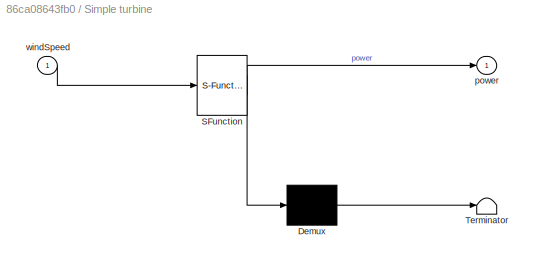
BLOCK [SubSystem] Simple turbine
  Commented = on
  ErrorFcn = Stateflow.Translate.translate
  PermitHierarchicalResolution = ExplicitOnly
  Ports = [1, 1]
  RequestExecContextInheritance = off
  SFBlockType = MATLAB Function
  TreatAsAtomicUnit = on
BLOCK [Demux] Simple turbine/ Demux 
  Outputs = 1
  Ports = [1, 1]
BLOCK [S-Function] Simple turbine/ SFunction 
  EnableBusSupport = on
  FunctionName = sf_sfun
  Parameters = cutInSpeed,cutOutSpeed,ratedOutputPower,ratedOutputSpeed
  PortCounts = [1 2]
  Ports = [1, 2]
  SFcnIsStateOwnerBlock = off
  SFunctionDeploymentMode = off
  Tag = Stateflow S-Function 2
BLOCK [Terminator] Simple turbine/ Terminator 
BLOCK [Outport] Simple turbine/power
  VectorParamsAs1DForOutWhenUnconnected = off
BLOCK [Inport] Simple turbine/windSpeed
BLOCK [Reference] Simulink-PS Converter  REF=nesl_utility/Simulink-PS
Converter
  Commented = on
  Ports = [1, 0, 0, 0, 0, 0, 1]
  SourceBlock = nesl_utility/Simulink-PS\nConverter
  SourceProductBaseCode = PW,SS
  SourceType = Simulink-PS\nConverter
BLOCK [Reference] Simulink-PS Converter1  REF=nesl_utility/Simulink-PS
Converter
  Ports = [1, 0, 0, 0, 0, 0, 1]
  SourceBlock = nesl_utility/Simulink-PS\nConverter
  SourceProductBaseCode = PW,SS
  SourceType = Simulink-PS\nConverter
BLOCK [Sin] Sine Wave
  Amplitude = 1400*sqrt(2)
  Frequency = 60*2*pi
  Ports = [0, 1]
  SampleTime = 0
BLOCK [Sin] Sine Wave1
  Amplitude = 1400*sqrt(2)
  Frequency = 60*2*pi
  Phase = 2*pi/3
  Ports = [0, 1]
  SampleTime = 0
BLOCK [Sin] Sine Wave2
  Amplitude = 1400*sqrt(2)
  Frequency = 60*2*pi
  Phase = 4*pi/3
  Ports = [0, 1]
  SampleTime = 0
BLOCK [Reference] Solver Configuration  REF=nesl_utility/Solver
Configuration
  Commented = on
  Ports = [0, 0, 0, 0, 0, 0, 1]
  SourceBlock = nesl_utility/Solver\nConfiguration
  SourceProductBaseCode = PW,SS
  SourceType = Solver\nConfiguration
BLOCK [Reference] Solver Configuration1  REF=nesl_utility/Solver
Configuration
  Commented = on
  Ports = [0, 0, 0, 0, 0, 0, 1]
  SourceBlock = nesl_utility/Solver\nConfiguration
  SourceProductBaseCode = PW,SS
  SourceType = Solver\nConfiguration
BLOCK [Reference] Solver Configuration2  REF=nesl_utility/Solver
Configuration
  Ports = [0, 0, 0, 0, 0, 0, 1]
  SourceBlock = nesl_utility/Solver\nConfiguration
  SourceProductBaseCode = PW,SS
  SourceType = Solver\nConfiguration
BLOCK [Sum] Subtract
  IconShape = rectangular
  Inputs = +-
  Ports = [2, 1]
BLOCK [Sum] Subtract1
  Commented = on
  IconShape = rectangular
  Inputs = +-
  Ports = [2, 1]
BLOCK [Sum] Subtract2
  IconShape = rectangular
  Inputs = +-
  Ports = [2, 1]
BLOCK [Sum] Sum1
  Commented = on
  InputSameDT = on
  Inputs = |+-
  NameLocation = top
  OutDataTypeStr = Inherit: Same as first input
  Ports = [2, 1]
  SaturateOnIntegerOverflow = on
BLOCK [Sum] Sum2
  Commented = on
  InputSameDT = on
  Inputs = +-|
  NameLocation = top
  OutDataTypeStr = Inherit: Same as first input
  Ports = [2, 1]
  SaturateOnIntegerOverflow = on
BLOCK [Sum] Sum3
  Commented = on
  IconShape = rectangular
  InputSameDT = on
  OutDataTypeStr = Inherit: Same as first input
  Ports = [2, 1]
  SaturateOnIntegerOverflow = on
BLOCK [Sum] Sum8
  Commented = on
  InputSameDT = on
  Inputs = |+-
  NameLocation = top
  OutDataTypeStr = Inherit: Same as first input
  Ports = [2, 1]
  SaturateOnIntegerOverflow = on
BLOCK [Scope] Te (N.m)
  Floating = off
  NumInputPorts = 1
  Ports = [1]
  ScopeSpecificationString = Simulink.scopes.TimeScopeBlockCfg('CurrentConfiguration', extmgr.ConfigurationSet(extmgr.Configuration('Core','General UI',true),extmgr.Configuration('Core','Source UI',true),extmgr.Configuration('Sources','WiredSimulink',true,'DataLoggingSaveFormat','Array','DataLoggingDecimation','1','DataLoggingDecimateData',true,'DataLoggingVariableName','ScopeData4'),extmgr.Configuration('Visuals','Time Domai...<+1679ch>
BLOCK [Scope] Te (N.m)1
  Commented = on
  Floating = off
  NumInputPorts = 1
  Ports = [1]
  ScopeSpecificationString = Simulink.scopes.TimeScopeBlockCfg('CurrentConfiguration', extmgr.ConfigurationSet(extmgr.Configuration('Core','General UI',true),extmgr.Configuration('Core','Source UI',true),extmgr.Configuration('Sources','WiredSimulink',true,'DataLoggingSaveFormat','Array','DataLoggingDecimation','1','DataLoggingDecimateData',true,'DataLoggingVariableName','ScopeData11'),extmgr.Configuration('Visuals','Time Doma...<+1652ch>
BLOCK [Terminator] Terminator1
  Commented = on
BLOCK [Constant] Tm
  Value = 34.5e3
BLOCK [Constant] Tm1
  Commented = on
  Value = 11.9
BLOCK [Trigonometry] Trigonometric Function1
  Commented = on
  NameLocation = top
  Ports = [1, 1]
BLOCK [Reference] Vab  REF=spsControlledVoltageSourceLib/Controlled Voltage Source
  AttributesFormatString = \n
  Description = source block
  NameLocation = right
  Ports = [1, 0, 0, 0, 0, 1, 1]
  SourceBlock = spsControlledVoltageSourceLib/Controlled Voltage Source
  SourceProductBaseCode = PS
  SourceType = Controlled Voltage Source
BLOCK [Reference] Vab1  REF=spsControlledVoltageSourceLib/Controlled Voltage Source
  AttributesFormatString = \n
  Commented = on
  Description = source block
  NameLocation = right
  Ports = [1, 0, 0, 0, 0, 1, 1]
  SourceBlock = spsControlledVoltageSourceLib/Controlled Voltage Source
  SourceProductBaseCode = PS
  SourceType = Controlled Voltage Source
BLOCK [Reference] Vab2  REF=spsControlledVoltageSourceLib/Controlled Voltage Source
  AttributesFormatString = \n
  Description = source block
  NameLocation = right
  Ports = [1, 0, 0, 0, 0, 1, 1]
  SourceBlock = spsControlledVoltageSourceLib/Controlled Voltage Source
  SourceProductBaseCode = PS
  SourceType = Controlled Voltage Source
BLOCK [Reference] Vbc  REF=spsControlledVoltageSourceLib/Controlled Voltage Source
  AttributesFormatString = \n
  Description = source block
  NameLocation = right
  Ports = [1, 0, 0, 0, 0, 1, 1]
  SourceBlock = spsControlledVoltageSourceLib/Controlled Voltage Source
  SourceProductBaseCode = PS
  SourceType = Controlled Voltage Source
BLOCK [Reference] Vbc1  REF=spsControlledVoltageSourceLib/Controlled Voltage Source
  AttributesFormatString = \n
  Commented = on
  Description = source block
  NameLocation = right
  Ports = [1, 0, 0, 0, 0, 1, 1]
  SourceBlock = spsControlledVoltageSourceLib/Controlled Voltage Source
  SourceProductBaseCode = PS
  SourceType = Controlled Voltage Source
BLOCK [Reference] Voltage Measurement  REF=spsVoltageMeasurementLib/Voltage Measurement
  NameLocation = right
  Ports = [0, 1, 0, 0, 0, 2]
  SourceBlock = spsVoltageMeasurementLib/Voltage Measurement
  SourceProductBaseCode = PS
  SourceType = Voltage Measurement
  UserDataPersistent = on
BLOCK [Reference] Voltage Measurement1  REF=spsVoltageMeasurementLib/Voltage Measurement
  NameLocation = right
  Ports = [0, 1, 0, 0, 0, 2]
  SourceBlock = spsVoltageMeasurementLib/Voltage Measurement
  SourceProductBaseCode = PS
  SourceType = Voltage Measurement
  UserDataPersistent = on
BLOCK [Reference] Voltage Measurement2  REF=spsVoltageMeasurementLib/Voltage Measurement
  NameLocation = right
  Ports = [0, 1, 0, 0, 0, 2]
  SourceBlock = spsVoltageMeasurementLib/Voltage Measurement
  SourceProductBaseCode = PS
  SourceType = Voltage Measurement
  UserDataPersistent = on
BLOCK [Sin] Wind Speed
  Amplitude = 25
  Commented = on
  Frequency = pi/60
  Ports = [0, 1]
  SampleTime = 0
BLOCK [Scope] angle
  Floating = off
  NumInputPorts = 1
  Ports = [1]
  ScopeSpecificationString = Simulink.scopes.TimeScopeBlockCfg('CurrentConfiguration', extmgr.ConfigurationSet(extmgr.Configuration('Core','General UI',true),extmgr.Configuration('Core','Source UI',true),extmgr.Configuration('Sources','WiredSimulink',true,'DataLoggingSaveFormat','Array','DataLoggingDecimation','1','DataLoggingDecimateData',true,'DataLoggingVariableName','ScopeData8'),extmgr.Configuration('Visuals','Time Domai...<+1673ch>
BLOCK [Scope] angle1
  Commented = on
  Floating = off
  NumInputPorts = 1
  Ports = [1]
  ScopeSpecificationString = Simulink.scopes.TimeScopeBlockCfg('CurrentConfiguration', extmgr.ConfigurationSet(extmgr.Configuration('Core','General UI',true),extmgr.Configuration('Core','Source UI',true),extmgr.Configuration('Sources','WiredSimulink',true,'DataLoggingSaveFormat','Array','DataLoggingDecimation','1','DataLoggingDecimateData',true,'DataLoggingVariableName','ScopeData12'),extmgr.Configuration('Visuals','Time Doma...<+1675ch>
BLOCK [Scope] angle2
  Floating = off
  NumInputPorts = 1
  Ports = [1]
  ScopeSpecificationString = Simulink.scopes.TimeScopeBlockCfg('CurrentConfiguration', extmgr.ConfigurationSet(extmgr.Configuration('Core','General UI',true),extmgr.Configuration('Core','Source UI',true),extmgr.Configuration('Sources','WiredSimulink',true,'DataLoggingSaveFormat','Array','DataLoggingDecimation','1','DataLoggingDecimateData',true,'DataLoggingVariableName','ScopeData15'),extmgr.Configuration('Visuals','Time Doma...<+1680ch>
BLOCK [SubSystem] info1
  Commented = on
  OpenFcn = showdemo(bdroot(gcb))
  Ports = []
  RequestExecContextInheritance = off
BLOCK [Scope] ir,is (A)
  Floating = off
  NameLocation = top
  NumInputPorts = 2
  Ports = [2]
  ScopeSpecificationString = Simulink.scopes.TimeScopeBlockCfg('CurrentConfiguration', extmgr.ConfigurationSet(extmgr.Configuration('Core','General UI',true),extmgr.Configuration('Core','Source UI',true),extmgr.Configuration('Sources','WiredSimulink',true,'DataLoggingSaveFormat','Array','DataLoggingDecimation','1','DataLoggingDecimateData',true,'DataLoggingVariableName','ScopeData5'),extmgr.Configuration('Visuals','Time Domai...<+2342ch>
BLOCK [Scope] ir,is (A)1
  Commented = on
  Floating = off
  NameLocation = top
  NumInputPorts = 2
  Ports = [2]
  ScopeSpecificationString = Simulink.scopes.TimeScopeBlockCfg('CurrentConfiguration', extmgr.ConfigurationSet(extmgr.Configuration('Core','General UI',true),extmgr.Configuration('Core','Source UI',true),extmgr.Configuration('Sources','WiredSimulink',true,'DataLoggingSaveFormat','Array','DataLoggingDecimation','1','DataLoggingDecimateData',true,'DataLoggingVariableName','ScopeData13'),extmgr.Configuration('Visuals','Time Doma...<+2346ch>
BLOCK [Gain] peak2rms1
  Commented = on
  Gain = 1/(sqrt(2))
  NameLocation = top
  OutDataTypeStr = Inherit: Same as input
  ParamDataTypeStr = Inherit: Same as input
  SaturateOnIntegerOverflow = on
BLOCK [Reference] powergui  REF=spspowerguiLib/powergui
  Ports = []
  SourceBlock = spspowerguiLib/powergui
  SourceProductBaseCode = PS
  SourceType = PSB option menu block
BLOCK [Reference] powergui1  REF=spspowerguiLib/powergui
  Commented = on
  Ports = []
  SourceBlock = spspowerguiLib/powergui
  SourceProductBaseCode = PS
  SourceType = PSB option menu block
BLOCK [Gain] pu2radpersec1
  Commented = on
  Gain = 2*pi*60
  NameLocation = top
  OutDataTypeStr = Inherit: Same as input
  ParamDataTypeStr = Inherit: Same as input
  SaturateOnIntegerOverflow = on
BLOCK [Gain] rpm
  Gain = 30/pi
  OutDataTypeStr = Inherit: Same as input
  ParamDataTypeStr = Inherit: Same as input
  SaturateOnIntegerOverflow = on
BLOCK [Gain] rpm1
  Commented = on
  Gain = 30/pi
  OutDataTypeStr = Inherit: Same as input
  ParamDataTypeStr = Inherit: Same as input
  SaturateOnIntegerOverflow = on
BLOCK [Scope] vab (V)1
  Commented = on
  Floating = off
  NameLocation = top
  NumInputPorts = 1
  Ports = [1]
  ScopeSpecificationString = Simulink.scopes.TimeScopeBlockCfg('CurrentConfiguration', extmgr.ConfigurationSet(extmgr.Configuration('Core','General UI',true),extmgr.Configuration('Core','Source UI',true),extmgr.Configuration('Sources','WiredSimulink',true,'DataLoggingSaveFormat','Array','DataLoggingDecimation','1','DataLoggingDecimateData',true,'DataLoggingVariableName','ScopeData14'),extmgr.Configuration('Visuals','Time Doma...<+1663ch>
BLOCK [Reference] vab1  REF=spsVoltageMeasurementLib/Voltage Measurement
  AttributesFormatString = \n
  Commented = on
  NameLocation = top
  Ports = [0, 1, 0, 0, 0, 2]
  SourceBlock = spsVoltageMeasurementLib/Voltage Measurement
  SourceProductBaseCode = PS
  SourceType = Voltage Measurement
  Tag = PoWeRsYsTeMmEaSuReMeNt
BLOCK [Step] wm* Step (p.u.)1
  Commented = on
  SampleTime = 0
  Time = 0
ANNOTATION (root): 1. Plot wind speed and output power of Simple turbine ( see code ) 2. Explore simulation results using sscexplore 3. Learn more about this example
ANNOTATION (root): Three-Phase Asynchronous Machine
ANNOTATION (root): Three-Phase Asynchronous Wind Turbine Generator
LINE 3 HP - 220 V 60 Hz - 1725 rpm1:1 -> Bus Selector1:1
LINE 3 HP - 220 V 60 Hz - 1725 rpm:1 -> Bus Selector:1
LINE Bus Selector1:1 -> ir,is (A)1:1
LINE Bus Selector1:2 -> ir,is (A)1:2
LINE Bus Selector1:3 -> rpm1:1
LINE Bus Selector1:4 -> Te (N.m)1:1
LINE Bus Selector1:5 -> Mod1:1
LINE Bus Selector:1 -> ir,is (A):1
LINE Bus Selector:2 -> ir,is (A):2
LINE Bus Selector:3 -> rpm:1
LINE Bus Selector:4 -> Te (N.m):1
LINE Bus Selector:5 -> Mod:1
NET Clock1:1 -> Math Function1:1, Product2:2
NET Constant10:1 -> Scope6:1, Simulink-PS Converter1:1
LINE Constant2:1 -> Mod:2
LINE Constant3:1 -> Divide:2
LINE Constant4:1 -> Subtract:1
LINE Constant5:1 -> Sum3:2
LINE Constant6:1 -> Math Function1:2
LINE Constant7:1 -> Mod1:2
LINE Constant8:1 -> Divide1:2
LINE Constant9:1 -> Subtract1:1
LINE Current Measurement1:1 -> Goto4:1
LINE Current Measurement2:1 -> Goto5:1
LINE Current Measurement:1 -> Goto3:1
LINE Demux1:1 -> RelayA1:1
LINE Demux1:2 -> RelayB1:1
LINE Demux1:3 -> RelayC1:1
LINE Divide1:1 -> Subtract1:2
LINE Divide:1 -> Subtract:2
LINE Fourier2:1 -> peak2rms1:1
LINE Fourier2:2 -> Terminator1:1
LINE From1:1 -> Mux:1
LINE From2:1 -> Mux:2
LINE From3:1 -> Mux1:3
LINE From4:1 -> Mux1:2
LINE From5:1 -> Mux1:1
LINE From:1 -> Mux:3
LINE Gain1:1 -> Generator1:2
LINE Gain2:1 -> Scope9:1
LINE Gain:1 -> Generator1:1
LINE Generator Sign Convention1:1 -> Generator:2
LINE Generator Sign Convention2:1 -> Gain:1
LINE Generator Sign Convention3:1 -> Gain1:1
LINE Generator Sign Convention:1 -> Generator:1
LINE Lookup Table1:1 -> Sum8:2
LINE Math Function1:1 -> Lookup Table1:1
LINE Mod1:1 -> angle1:1
NET Mod:1 -> Subtract2:1, angle:1
LINE Mux1:1 -> Power Measurement (Three-Phase):2
LINE Mux:1 -> Power Measurement (Three-Phase):1
LINE PS-Simulink Converter10:1 -> Generator Sign Convention2:1
LINE PS-Simulink Converter11:1 -> Display2:1
LINE PS-Simulink Converter12:1 -> Gain2:1
LINE PS-Simulink Converter13:1 -> Display3:1
LINE PS-Simulink Converter1:1 -> Scope1:2
LINE PS-Simulink Converter2:1 -> Scope2:2
LINE PS-Simulink Converter3:1 -> Scope2:1
LINE PS-Simulink Converter4:1 -> Scope1:1
LINE PS-Simulink Converter5:1 -> Scope:2
LINE PS-Simulink Converter6:1 -> Scope:1
LINE PS-Simulink Converter7:1 -> Generator Sign Convention1:1
LINE PS-Simulink Converter8:1 -> Generator Sign Convention:1
LINE PS-Simulink Converter9:1 -> Generator Sign Convention3:1
LINE Power Measurement (Three-Phase):1 -> Scope3:1
LINE Power Measurement (Three-Phase):2 -> Scope3:2
LINE Product2:1 -> Sum3:1
LINE Product3:1 -> Sum8:1
LINE RelayA1:1 -> Sum1:1
NET RelayB1:1 -> Sum1:2, Sum2:1
LINE RelayC1:1 -> Sum2:2
NET Simple turbine:1 -> Scope5:1, Simulink-PS Converter:1
LINE Sine Wave1:1 -> Vbc:1
LINE Sine Wave2:1 -> Vab2:1
LINE Sine Wave:1 -> Vab:1
LINE Subtract1:1 -> Display1:1
LINE Subtract2:1 -> angle2:1
LINE Subtract:1 -> Display:1
LINE Sum1:1 -> Vab1:1
LINE Sum2:1 -> Vbc1:1
LINE Sum3:1 -> Trigonometric Function1:1
LINE Sum8:1 -> Demux1:1
LINE Tm1:1 -> 3 HP - 220 V 60 Hz - 1725 rpm1:1
LINE Tm:1 -> 3 HP - 220 V 60 Hz - 1725 rpm:1
NET Trigonometric Function1:1 -> Product3:1, Scope4:1
LINE Voltage Measurement1:1 -> Goto1:1
LINE Voltage Measurement2:1 -> Goto2:1
LINE Voltage Measurement:1 -> Goto:1
LINE Wind Speed:1 -> Simple turbine:1
LINE peak2rms1:1 -> RMS Vab voltage1:1
LINE pu2radpersec1:1 -> Product2:1
NET rpm1:1 -> Divide1:1, N (rpm)1:1
NET rpm:1 -> Divide:1, N (rpm):1
NET vab1:1 -> Fourier2:1, vab (V)1:1
NET wm* Step (p.u.)1:1 -> Product3:2, pu2radpersec1:1
PNET net1: 3 HP - 220 V 60 Hz - 1725 rpm1:LConn1 -- Vab1:RConn1 -- vab1:LConn1
PNET net2: 3 HP - 220 V 60 Hz - 1725 rpm1:LConn2 -- Vab1:LConn1 -- Vbc1:RConn1 -- vab1:LConn2
PLINE 3 HP - 220 V 60 Hz - 1725 rpm1:LConn3 -- Vbc1:LConn1
PLINE 3 HP - 220 V 60 Hz - 1725 rpm:LConn1 -- Current Measurement:RConn1
PLINE 3 HP - 220 V 60 Hz - 1725 rpm:LConn2 -- Current Measurement1:RConn1
PLINE 3 HP - 220 V 60 Hz - 1725 rpm:LConn3 -- Current Measurement2:RConn1
PNET net3: ASM measurement1:LConn1 -- ASM measurement:LConn1 -- Asynchronous Machine Squirrel Cage (fundamental):RConn1
PLINE ASM measurement1:RConn1 -- PS-Simulink Converter7:LConn1
PNET net4: ASM measurement2:LConn1 -- ASM measurement3:LConn1 -- ASM measurement4:LConn1 -- ASM measurement5:LConn1 -- ASM measurement6:LConn1 -- Asynchronous Machine Squirrel Cage (fundamental)1:RConn1
PLINE ASM measurement2:RConn1 -- PS-Simulink Converter10:LConn1
PLINE ASM measurement3:RConn1 -- PS-Simulink Converter9:LConn1
PLINE ASM measurement4:RConn1 -- PS-Simulink Converter11:LConn1
PLINE ASM measurement5:RConn1 -- PS-Simulink Converter12:LConn1
PLINE ASM measurement6:RConn1 -- PS-Simulink Converter13:LConn1
PLINE ASM measurement:RConn1 -- PS-Simulink Converter8:LConn1
PLINE Asynchronous Machine Squirrel Cage (fundamental)1:LConn1 -- Machine Mechanical Power (SI)1:RConn1
PLINE Asynchronous Machine Squirrel Cage (fundamental)1:LConn2 -- Machine Mechanical Power (SI)1:RConn2
PNET net5: Asynchronous Machine Squirrel Cage (fundamental)1:RConn2 -- Infeed from Power Grid1:RConn1 -- Local load1:LConn1 -- Reactive compensation1:LConn1
PLINE Asynchronous Machine Squirrel Cage (fundamental)1:RConn3 -- Floating Neutral (Three-Phase)2:LConn1
PLINE Asynchronous Machine Squirrel Cage (fundamental):LConn1 -- Machine Mechanical Power (SI):RConn1
PLINE Asynchronous Machine Squirrel Cage (fundamental):LConn2 -- Machine Mechanical Power (SI):RConn2
PNET net6: Asynchronous Machine Squirrel Cage (fundamental):RConn2 -- Delta Connected Machine:LConn1 -- Infeed from Power Grid:RConn1 -- Local load:LConn1 -- Reactive compensation:LConn1
PLINE Asynchronous Machine Squirrel Cage (fundamental):RConn3 -- Delta Connected Machine:RConn1
PNET net7: Current Measurement1:LConn1 -- Vbc:RConn1 -- Voltage Measurement1:LConn1
PNET net8: Current Measurement2:LConn1 -- Vab2:RConn1 -- Voltage Measurement2:LConn1
PNET net9: Current Measurement:LConn1 -- Vab:RConn1 -- Voltage Measurement:LConn1
PLINE Electrical Reference1:LConn1 -- Load Flow Source:RConn1
PLINE Electrical Reference2:LConn1 -- Infeed from Power Grid:LConn1
PLINE Electrical Reference3:LConn1 -- Local load:RConn1
PLINE Electrical Reference4:LConn1 -- Infeed from Power Grid1:LConn1
PLINE Electrical Reference5:LConn1 -- Local load1:RConn1
PLINE Floating Neutral (Three-Phase)1:LConn1 -- Induction Machine Squirrel Cage1:RConn3
PLINE Floating Neutral (Three-Phase):LConn1 -- Induction Machine Squirrel Cage:RConn3
PNET net10: Ground:LConn1 -- Vab2:LConn1 -- Vab:LConn1 -- Vbc:LConn1 -- Voltage Measurement1:LConn2 -- Voltage Measurement2:LConn2 -- Voltage Measurement:LConn2
PNET net11: Ideal Rotational Motion Sensor1:LConn1 -- Ideal Torque Sensor1:LConn1 -- Ideal Torque Source1:LConn1 -- Inertia1:LConn1
PNET net12: Ideal Rotational Motion Sensor1:RConn1 -- Ideal Torque Source1:RConn2 -- Induction Machine Squirrel Cage1:LConn2 -- Mechanical Rotational Reference1:LConn1
PLINE Ideal Rotational Motion Sensor1:RConn2 -- PS-Simulink Converter3:LConn1
PNET net13: Ideal Rotational Motion Sensor:LConn1 -- Ideal Torque Sensor:LConn1 -- Ideal Torque Source:LConn1 -- Inertia:LConn1
PNET net14: Ideal Rotational Motion Sensor:RConn1 -- Ideal Torque Source:RConn2 -- Induction Machine Squirrel Cage:LConn2 -- Mechanical Rotational Reference:LConn1
PLINE Ideal Rotational Motion Sensor:RConn2 -- PS-Simulink Converter4:LConn1
PLINE Ideal Torque Sensor1:RConn1 -- Induction Machine Squirrel Cage1:LConn1
PLINE Ideal Torque Sensor1:RConn2 -- PS-Simulink Converter2:LConn1
PLINE Ideal Torque Sensor:RConn1 -- Induction Machine Squirrel Cage:LConn1
PLINE Ideal Torque Sensor:RConn2 -- PS-Simulink Converter1:LConn1
PNET net15: Ideal Torque Source1:RConn1 -- Ideal Torque Source:RConn1 -- Load torque1:RConn1
PLINE Induction Machine Measurement1:LConn1 -- Induction Machine Squirrel Cage1:RConn1
PLINE Induction Machine Measurement1:RConn1 -- PS-Simulink Converter5:LConn1
PLINE Induction Machine Measurement:LConn1 -- Induction Machine Squirrel Cage:RConn1
PLINE Induction Machine Measurement:RConn1 -- PS-Simulink Converter6:LConn1
PNET net16: Induction Machine Squirrel Cage1:RConn2 -- Induction Machine Squirrel Cage:RConn2 -- Load Flow Source:LConn1 -- Solver Configuration:RConn1
PNET net17: Machine Mechanical Power (SI)1:LConn1 -- Simulink-PS Converter1:RConn1 -- Solver Configuration2:RConn1
PNET net18: Machine Mechanical Power (SI):LConn1 -- Simulink-PS Converter:RConn1 -- Solver Configuration1:RConn1
note: NET lines group one-source signal fan-out (src -> all destinations, sorted); 1:1 wires keep LINE; PNET lines group multi-terminal physical nets as a canonical sorted terminal list (undirected conserving connections); 2-terminal nets keep the pairwise PLINE form
CHART Simple turbine states=1 transitions=1
  STATE_LABEL 'eML_blk_kernel()'
  STATE_LABEL 'SCRIPT:\nfunction power = simpleTurbine( windSpeed, ratedOutputPower, cutInSpeed, ratedOutputSpeed, cutOutSpeed ) %#codegen\n%Simple Turbine\n% This function implements a simple power versus wind speed characteristic\n% to represent a wind turbine.\n%\n% Given an input of wind speed, m/s, the function outputs turbine power, W.\n%\n% The parameters must meet the following requirement:\n%\n% Cut-in speed < Ra...<+1217ch>'
CHART  states=0 transitions=0
